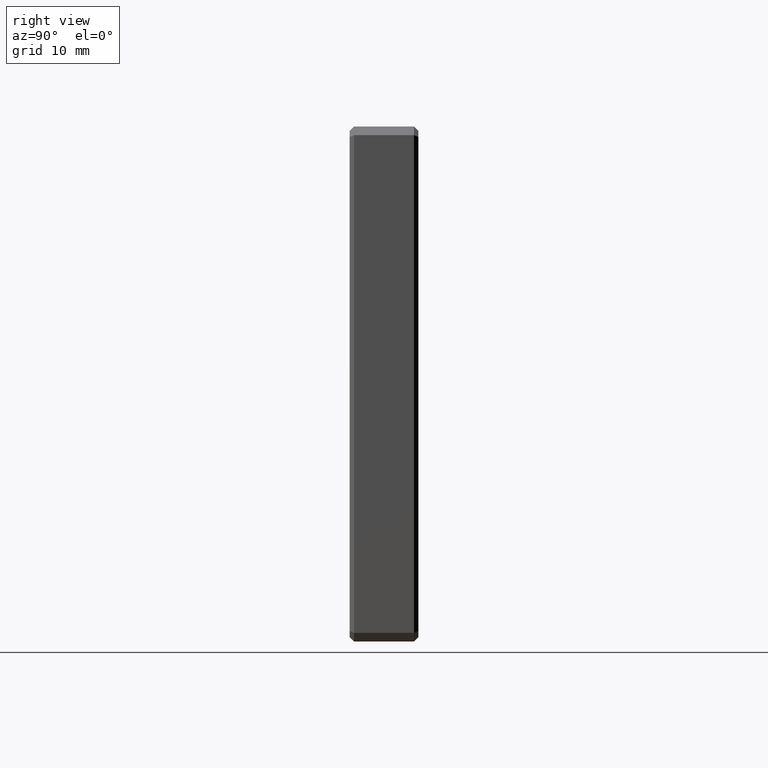
[diagram: clean part render]
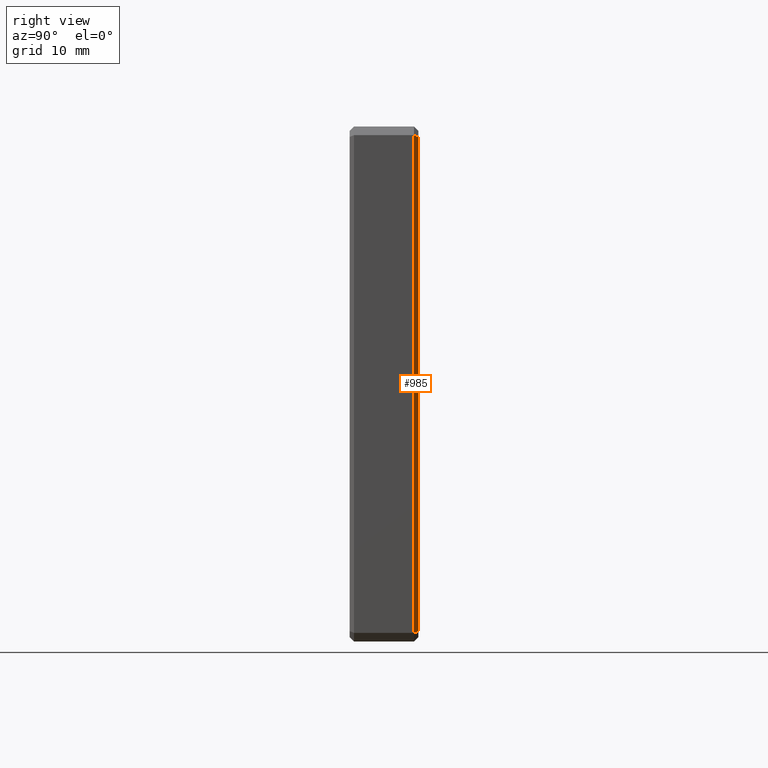
[diagram: same view with one face highlighted and labeled with its STEP entity id]
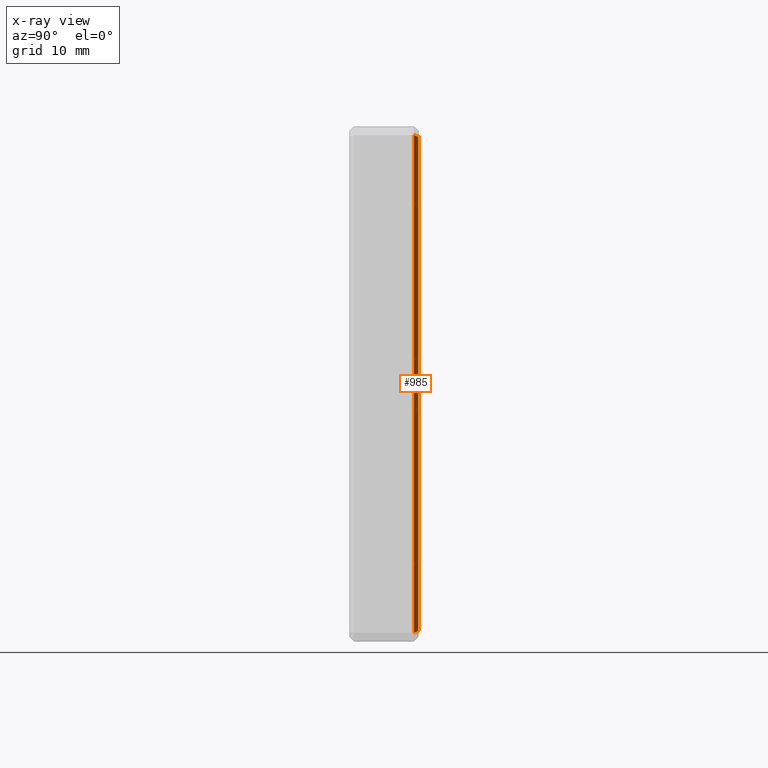
[diagram: x-ray of the same camera — body ghosted, the highlighted face saturated]
A machine part, right view. The second image highlights one B-rep face of the part: STEP entity #985.
The next image is the same camera in x-ray: the body ghosted, the highlighted face saturated — about 0% of this face is hidden behind the body in this view.
In plain terms, the highlighted planar face has unit normal (-0.7071, -0.7071, 0).
Its self-contained STEP definition (entity closure, byte-faithful):
#46 = CARTESIAN_POINT ( 'NONE',  ( 30.00000000000000000, 7.499999999999992895, -28.99999999999999289 ) ) ;
#79 = VERTEX_POINT ( 'NONE', #1441 ) ;
#141 = LINE ( 'NONE', #863, #1348 ) ;
#172 = PLANE ( 'NONE',  #1398 ) ;
#201 = CARTESIAN_POINT ( 'NONE',  ( 29.50000000000000711, 8.000000000000000000, -7.058530005698735063E-15 ) ) ;
#334 = ORIENTED_EDGE ( 'NONE', *, *, #891, .F. ) ;
#384 = LINE ( 'NONE', #843, #1127 ) ;
#415 = DIRECTION ( 'NONE',  ( -2.392722035830078972E-16, 0.000000000000000000, -1.000000000000000000 ) ) ;
#471 = VECTOR ( 'NONE', #598, 1000.000000000000000 ) ;
#492 = LINE ( 'NONE', #46, #471 ) ;
#517 = VECTOR ( 'NONE', #1247, 999.9999999999998863 ) ;
#592 = EDGE_CURVE ( 'NONE', #670, #79, #492, .T. ) ;
#598 = DIRECTION ( 'NONE',  ( 2.392722035830078972E-16, 0.000000000000000000, 1.000000000000000000 ) ) ;
#604 = ORIENTED_EDGE ( 'NONE', *, *, #1414, .F. ) ;
#612 = EDGE_CURVE ( 'NONE', #1276, #670, #1331, .T. ) ;
#628 = CARTESIAN_POINT ( 'NONE',  ( 29.50000000000000000, 8.000000000000000000, -28.79289321881346453 ) ) ;
#645 = CARTESIAN_POINT ( 'NONE',  ( 29.50000000000000711, 8.000000000000000000, -7.058530005698735063E-15 ) ) ;
#648 = EDGE_CURVE ( 'NONE', #1095, #1276, #384, .T. ) ;
#670 = VERTEX_POINT ( 'NONE', #1164 ) ;
#787 = VERTEX_POINT ( 'NONE', #797 ) ;
#788 = CARTESIAN_POINT ( 'NONE',  ( 29.50000000000000000, 8.000000000000000000, -25.00000000000000000 ) ) ;
#797 = CARTESIAN_POINT ( 'NONE',  ( 29.50000000000001066, 8.000000000000000000, 28.79289321881344677 ) ) ;
#843 = CARTESIAN_POINT ( 'NONE',  ( 29.50000000000000711, 8.000000000000000000, -7.058530005698735063E-15 ) ) ;
#844 = DIRECTION ( 'NONE',  ( -2.392722035830078972E-16, 0.000000000000000000, -1.000000000000000000 ) ) ;
#863 = CARTESIAN_POINT ( 'NONE',  ( 29.50000000000000711, 8.000000000000000000, -7.058530005698735063E-15 ) ) ;
#866 = VECTOR ( 'NONE', #1439, 1000.000000000000114 ) ;
#869 = LINE ( 'NONE', #645, #908 ) ;
#891 = EDGE_CURVE ( 'NONE', #787, #1510, #141, .T. ) ;
#897 = DIRECTION ( 'NONE',  ( -0.7071067811865524577, -0.7071067811865425767, 1.691909977029941865E-16 ) ) ;
#908 = VECTOR ( 'NONE', #1110, 1000.000000000000000 ) ;
#985 = ADVANCED_FACE ( 'NONE', ( #1354 ), #172, .F. ) ;
#1068 = EDGE_LOOP ( 'NONE', ( #334, #1077, #1442, #1297, #1185, #604 ) ) ;
#1077 = ORIENTED_EDGE ( 'NONE', *, *, #1401, .T. ) ;
#1089 = CARTESIAN_POINT ( 'NONE',  ( 29.40462821508475599, 8.095371784915240454, -28.75338893203385027 ) ) ;
#1095 = VERTEX_POINT ( 'NONE', #788 ) ;
#1102 = LINE ( 'NONE', #1460, #517 ) ;
#1110 = DIRECTION ( 'NONE',  ( -2.392722035830078972E-16, 0.000000000000000000, -1.000000000000000000 ) ) ;
#1127 = VECTOR ( 'NONE', #1311, 1000.000000000000000 ) ;
#1164 = CARTESIAN_POINT ( 'NONE',  ( 30.00000000000000000, 7.500000000000013323, -28.99999999999999289 ) ) ;
#1185 = ORIENTED_EDGE ( 'NONE', *, *, #648, .F. ) ;
#1247 = DIRECTION ( 'NONE',  ( 0.6785983445458400043, -0.6785983445458495522, 0.2810846377148313313 ) ) ;
#1276 = VERTEX_POINT ( 'NONE', #628 ) ;
#1297 = ORIENTED_EDGE ( 'NONE', *, *, #612, .F. ) ;
#1311 = DIRECTION ( 'NONE',  ( -2.392722035830078972E-16, 0.000000000000000000, -1.000000000000000000 ) ) ;
#1331 = LINE ( 'NONE', #1089, #866 ) ;
#1348 = VECTOR ( 'NONE', #844, 1000.000000000000000 ) ;
#1354 = FACE_OUTER_BOUND ( 'NONE', #1068, .T. ) ;
#1367 = CARTESIAN_POINT ( 'NONE',  ( 29.50000000000001066, 8.000000000000000000, 25.00000000000000000 ) ) ;
#1398 = AXIS2_PLACEMENT_3D ( 'NONE', #201, #897, #415 ) ;
#1401 = EDGE_CURVE ( 'NONE', #787, #79, #1102, .T. ) ;
#1414 = EDGE_CURVE ( 'NONE', #1510, #1095, #869, .T. ) ;
#1439 = DIRECTION ( 'NONE',  ( 0.6785983445458414476, -0.6785983445458508845, -0.2810846377148241149 ) ) ;
#1441 = CARTESIAN_POINT ( 'NONE',  ( 30.00000000000001421, 7.499999999999992895, 29.00000000000000000 ) ) ;
#1442 = ORIENTED_EDGE ( 'NONE', *, *, #592, .F. ) ;
#1460 = CARTESIAN_POINT ( 'NONE',  ( 24.00794076169364288, 13.49205923830644416, 26.51800779695039267 ) ) ;
#1510 = VERTEX_POINT ( 'NONE', #1367 ) ;